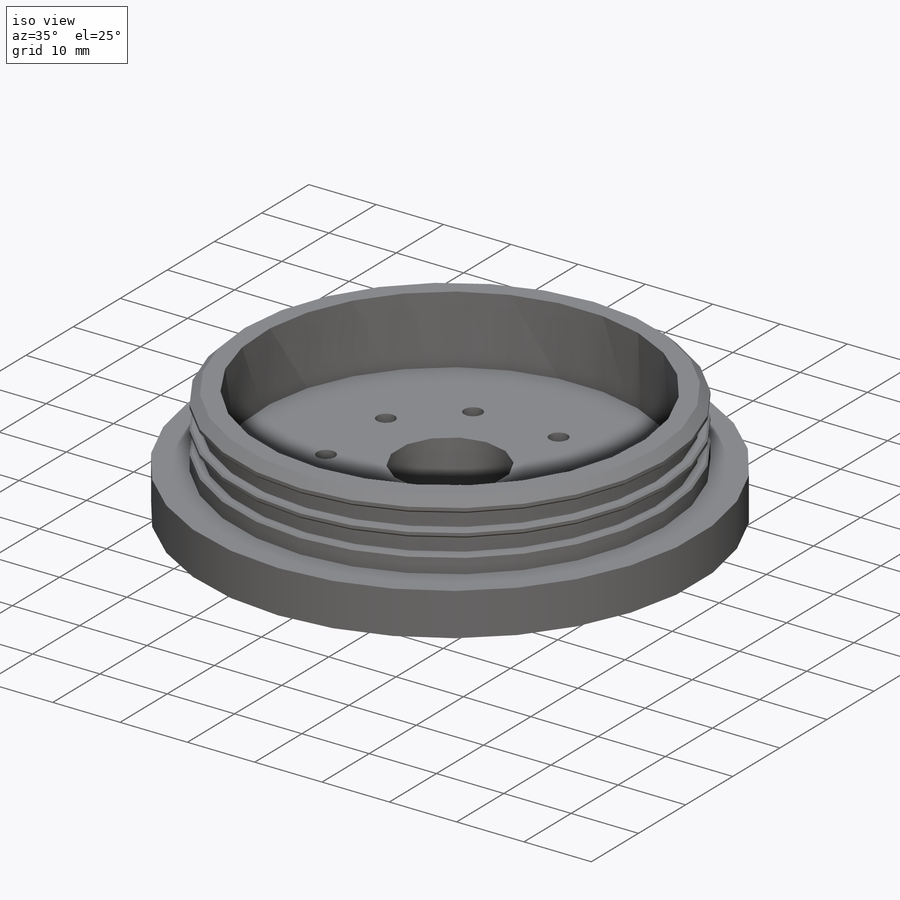
[diagram: iso view]
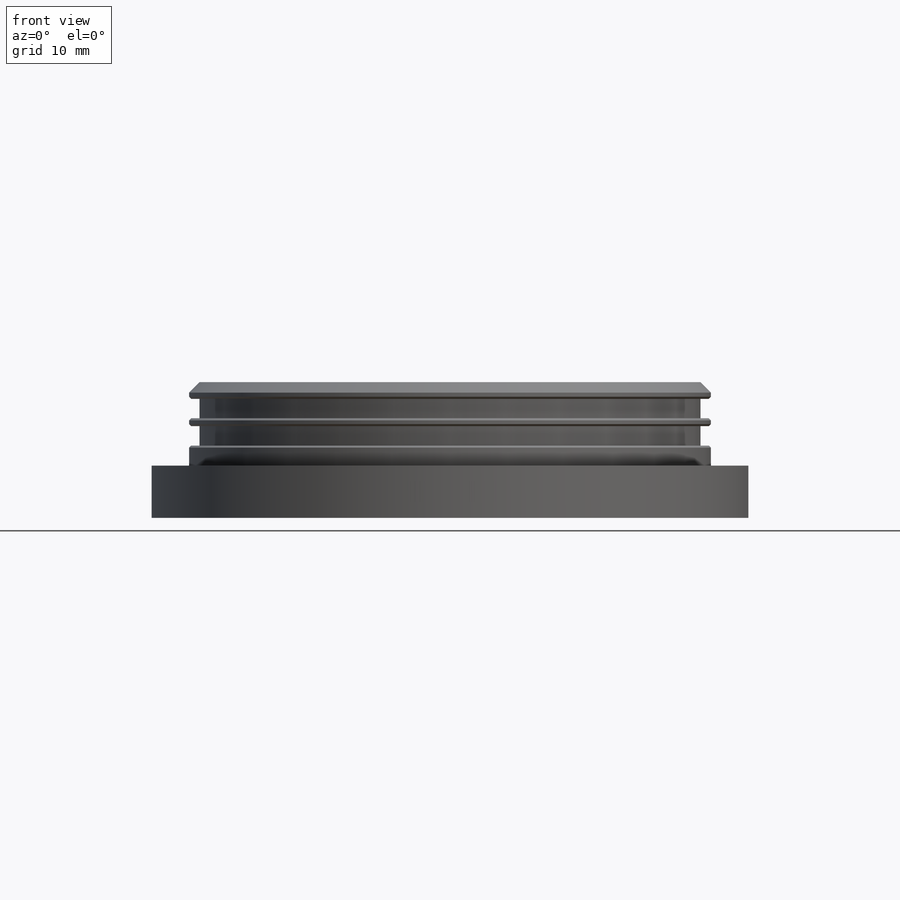
[diagram: front view]
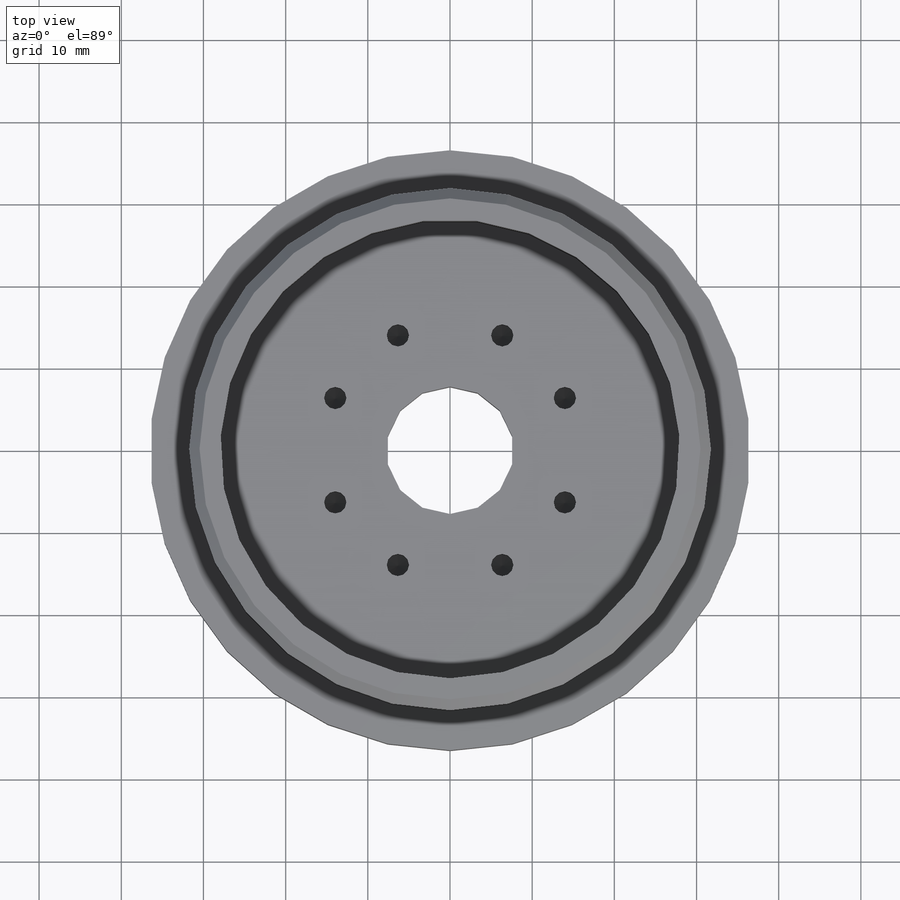
[diagram: top view]
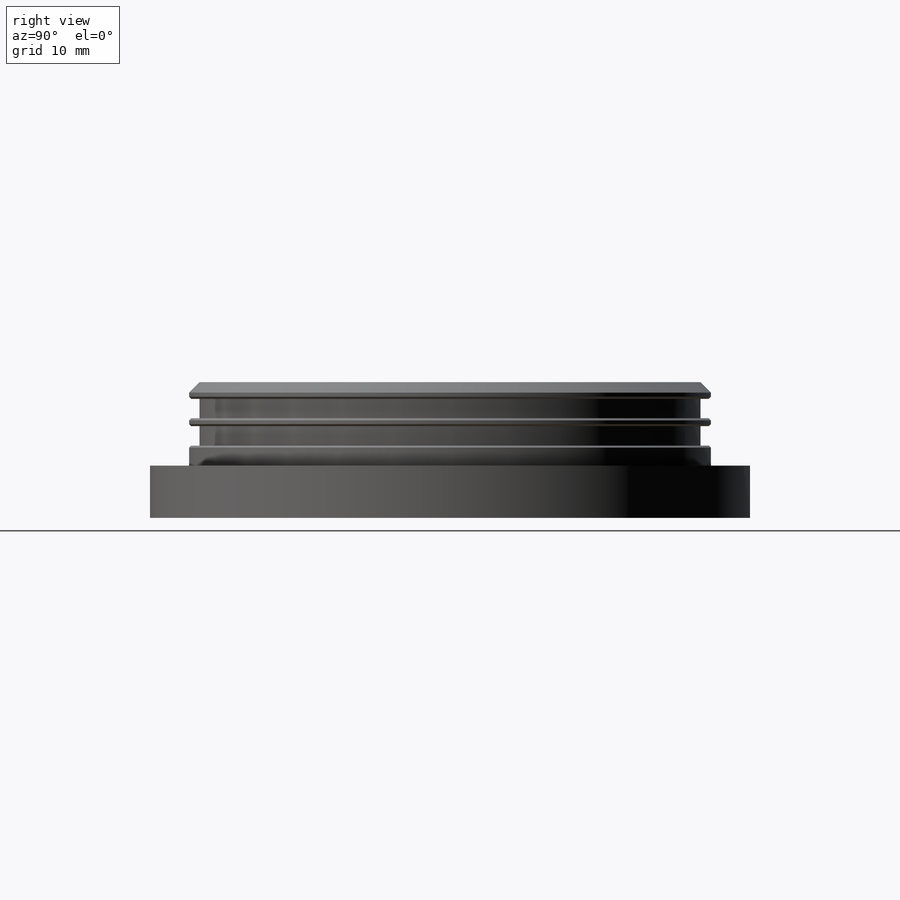
[diagram: right view]
SOLIDWORKS PART (.sldprt)
format: sldprt  version: not decoded by parser v0  size: 320,512 bytes
history: native  units: mm
features: sketch x9, extrude x2, chamfer x2, hole x2, material x1, cut_revolve x1, cut_extrude x1 (+11 scaffold rows collapsed)
feature tree (29):
  scaffold x11  (default folders/planes/origin — collapsed)
  material  "6061 Alloy"
  sketch  "Sketch1"  dims[D1=50.8mm]
  extrude  "Extrude1"  Depth=3.175mm
  sketch  "Sketch2"  dims[D1=38.1mm]
  extrude  "Extrude2"  Depth=10.16mm
  sketch  "Sketch4"  dims[c1.D1=2.3622mm c1.D2=2.3622mm c1.D3=1.5875mm c1.D4=1.5875mm c2.D3=30.48mm]
  cut_revolve  "Cut-Revolve7"  Angle=360deg
  sketch  "Sketch5"  dims[D1=30.1625mm]
  cut_extrude  "Cut-Extrude1"  Depth=10.16mm
  chamfer  "Chamfer1"  Distance=1.27mm Angle=45deg
  sketch  "Sketch8"
  hole  "M14 Clearance Hole1"  Diameter=15.5mm Depth=330.2mm
  sketch  "3DSketch1"
  sketch  "Sketch9"  dims[hole-wizard template sketch: 46 standard entries collapsed; hole parameters kept: c15.Hole Dia.=15.5mm c15.Hole Depth=330.2mm c15.D3=~14.816244mm c15.Drill Angle=118.0deg]
  chamfer  "Chamfer2"  Distance=0.254mm Angle=45deg
  hole  "Tap Drill for #6 Tap1"  Diameter=2.7051mm Depth=3.302mm
  sketch  "3DSketch2"  dims[c1.D1=~10.853031mm c1.D9=13.97mm c1.D2=12.7mm c1.D3=~10.133677mm c2.D1=6.35mm c2.D4=~15.587031mm c3.D4=~307.258532deg c3.D5=315.0deg c4.D4=~16.654073mm c4.D1=13.97mm c4.D5=~13.944554mm c5.D1=13.97mm c5.D6=~14.955799mm c6.D1=13.97mm c6.D7=12.7mm c6.D8=7.2295mm c7.D1=12.7mm c7.D3=12.7mm c8.D1=27.94mm c8.D3=27.94mm c8.D4=6.35mm c8.D6=6.35mm c8.D5=~7.869642mm c9.D4=13.97mm c9.D5=13.97mm]
  sketch  "Sketch11"  dims[hole-wizard template sketch: 50 standard entries collapsed; hole parameters above]
decode coverage: 15 of 17 modeling features carry decoded parameters
note: ~ marks probable driven/reference dimensions
note: suppression state not decoded; provenance and decode notes live in map.json
